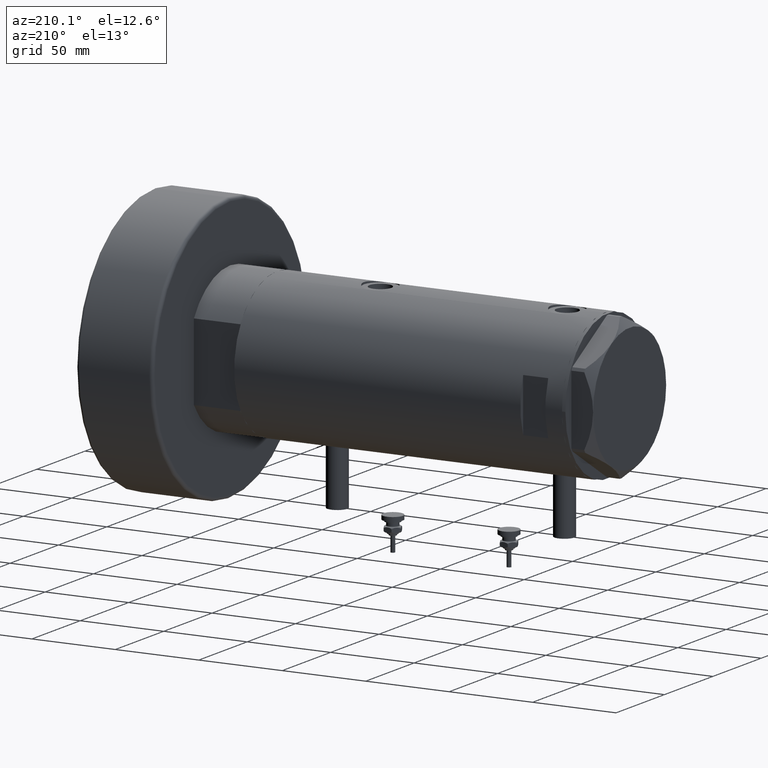
[diagram: clean part render]
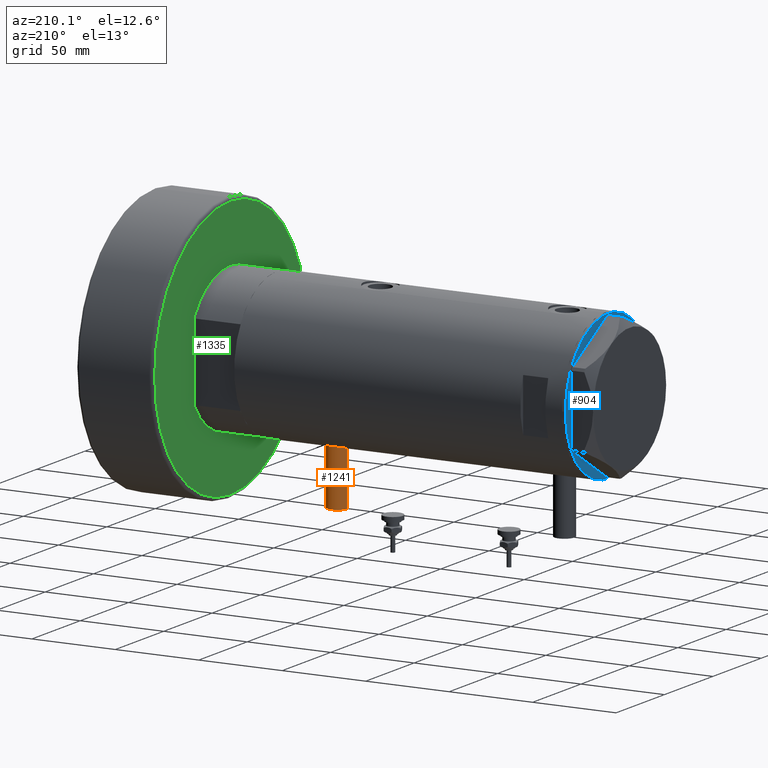
[diagram: same view with three faces highlighted in distinct colors, each labeled with its STEP entity id]
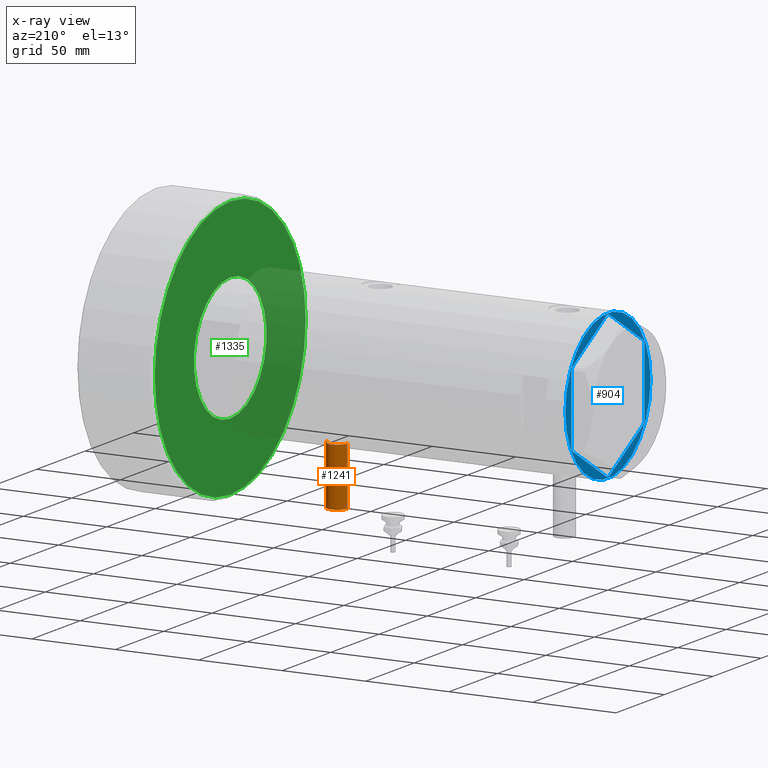
[diagram: x-ray of the same camera — body ghosted, the three highlighted faces saturated]
A machine part, auxiliary view with three faces highlighted in distinct colors.
The next image is the same camera in x-ray (body ghosted, the three faces saturated) — at least one of them is partly hidden behind the body in this view.
Their STEP definitions:

[orange] entity #1241 — the highlighted cylindrical surface (edge-blend (fillet) strip) has radius 6 mm, axis along (0, 0, 1).
#420 = DIRECTION ( 'NONE',  ( 1.000000000000000000, -0.000000000000000000, -0.000000000000000000 ) ) ;
#646 = DIRECTION ( 'NONE',  ( 0.000000000000000000, 0.000000000000000000, -1.000000000000000000 ) ) ;
#1120 = DIRECTION ( 'NONE',  ( -1.000000000000000000, 0.000000000000000000, 0.000000000000000000 ) ) ;
#1234 = VECTOR ( 'NONE', #420, 1000.000000000000000 ) ;
#1241 = ADVANCED_FACE ( 'NONE', ( #4552 ), #4039, .T. ) ;
#1384 = LINE ( 'NONE', #4266, #1234 ) ;
#1420 = EDGE_LOOP ( 'NONE', ( #4732, #5740, #2339, #3110 ) ) ;
#1750 = CARTESIAN_POINT ( 'NONE',  ( -77.50000000000000000, 7.347880794884122694E-16, -55.90000000000000568 ) ) ;
#1783 = EDGE_CURVE ( 'NONE', #3271, #3826, #2314, .T. ) ;
#1915 = CARTESIAN_POINT ( 'NONE',  ( -42.79999999999999716, 7.347880794884119736E-16, -55.90000000000000568 ) ) ;
#2014 = VECTOR ( 'NONE', #4175, 1000.000000000000000 ) ;
#2173 = EDGE_CURVE ( 'NONE', #4064, #3271, #2184, .T. ) ;
#2184 = LINE ( 'NONE', #1750, #2014 ) ;
#2314 = CIRCLE ( 'NONE', #4461, 6.000000000000005329 ) ;
#2339 = ORIENTED_EDGE ( 'NONE', *, *, #1783, .T. ) ;
#2563 = CARTESIAN_POINT ( 'NONE',  ( -77.50000000000000000, 0.000000000000000000, -61.90000000000001279 ) ) ;
#2665 = CIRCLE ( 'NONE', #3995, 6.000000000000005329 ) ;
#2890 = EDGE_CURVE ( 'NONE', #4064, #4199, #2665, .T. ) ;
#3110 = ORIENTED_EDGE ( 'NONE', *, *, #5738, .F. ) ;
#3271 = VERTEX_POINT ( 'NONE', #1915 ) ;
#3759 = CARTESIAN_POINT ( 'NONE',  ( -42.79999999999999716, 0.000000000000000000, -67.90000000000001990 ) ) ;
#3826 = VERTEX_POINT ( 'NONE', #3759 ) ;
#3951 = CARTESIAN_POINT ( 'NONE',  ( -42.79999999999999716, 0.000000000000000000, -61.90000000000001279 ) ) ;
#3995 = AXIS2_PLACEMENT_3D ( 'NONE', #2563, #1120, #4979 ) ;
#4039 = CYLINDRICAL_SURFACE ( 'NONE', #6125, 6.000000000000005329 ) ;
#4064 = VERTEX_POINT ( 'NONE', #4808 ) ;
#4175 = DIRECTION ( 'NONE',  ( 1.000000000000000000, -0.000000000000000000, -0.000000000000000000 ) ) ;
#4199 = VERTEX_POINT ( 'NONE', #5048 ) ;
#4266 = CARTESIAN_POINT ( 'NONE',  ( -77.50000000000000000, 0.000000000000000000, -67.90000000000001990 ) ) ;
#4423 = DIRECTION ( 'NONE',  ( 1.000000000000000000, -0.000000000000000000, -0.000000000000000000 ) ) ;
#4461 = AXIS2_PLACEMENT_3D ( 'NONE', #3951, #4825, #6357 ) ;
#4552 = FACE_OUTER_BOUND ( 'NONE', #1420, .T. ) ;
#4732 = ORIENTED_EDGE ( 'NONE', *, *, #2890, .F. ) ;
#4808 = CARTESIAN_POINT ( 'NONE',  ( -77.50000000000000000, 7.347880794884119736E-16, -55.90000000000000568 ) ) ;
#4825 = DIRECTION ( 'NONE',  ( -1.000000000000000000, 0.000000000000000000, 0.000000000000000000 ) ) ;
#4979 = DIRECTION ( 'NONE',  ( 0.000000000000000000, 0.000000000000000000, 1.000000000000000000 ) ) ;
#5048 = CARTESIAN_POINT ( 'NONE',  ( -77.50000000000000000, 0.000000000000000000, -67.90000000000001990 ) ) ;
#5738 = EDGE_CURVE ( 'NONE', #4199, #3826, #1384, .T. ) ;
#5740 = ORIENTED_EDGE ( 'NONE', *, *, #2173, .T. ) ;
#5989 = CARTESIAN_POINT ( 'NONE',  ( -77.50000000000000000, 0.000000000000000000, -61.90000000000001279 ) ) ;
#6125 = AXIS2_PLACEMENT_3D ( 'NONE', #5989, #4423, #646 ) ;
#6357 = DIRECTION ( 'NONE',  ( 0.000000000000000000, 0.000000000000000000, 1.000000000000000000 ) ) ;

[blue] entity #904 — the highlighted planar face has unit normal (1, 0, -0).
#17 = EDGE_LOOP ( 'NONE', ( #2877, #151 ) ) ;
#22 = ORIENTED_EDGE ( 'NONE', *, *, #145, .T. ) ;
#45 = ORIENTED_EDGE ( 'NONE', *, *, #6352, .F. ) ;
#84 = EDGE_CURVE ( 'NONE', #1723, #886, #141, .T. ) ;
#87 = VECTOR ( 'NONE', #1209, 1000.000000000000114 ) ;
#141 = LINE ( 'NONE', #2972, #364 ) ;
#145 = EDGE_CURVE ( 'NONE', #1723, #4906, #2525, .T. ) ;
#147 = AXIS2_PLACEMENT_3D ( 'NONE', #2731, #5699, #3730 ) ;
#151 = ORIENTED_EDGE ( 'NONE', *, *, #2796, .F. ) ;
#213 = CARTESIAN_POINT ( 'NONE',  ( 0.9699484522385850571, 43.02994532381674020, 0.000000000000000000 ) ) ;
#243 = DIRECTION ( 'NONE',  ( -0.8660254037844385966, 0.5000000000000000000, 0.000000000000000000 ) ) ;
#258 = CARTESIAN_POINT ( 'NONE',  ( -4.107234936485837051E-15, -43.58994532381674247, 0.000000000000000000 ) ) ;
#336 = CARTESIAN_POINT ( 'NONE',  ( -37.75000000000000711, 20.67497266190837024, 0.000000000000000000 ) ) ;
#364 = VECTOR ( 'NONE', #2492, 1000.000000000000227 ) ;
#377 = VECTOR ( 'NONE', #6109, 1000.000000000000000 ) ;
#447 = ORIENTED_EDGE ( 'NONE', *, *, #1820, .T. ) ;
#479 = ORIENTED_EDGE ( 'NONE', *, *, #1714, .T. ) ;
#516 = VERTEX_POINT ( 'NONE', #1353 ) ;
#825 = CARTESIAN_POINT ( 'NONE',  ( 0.000000000000000000, -43.02994532381674020, 0.000000000000000000 ) ) ;
#886 = VERTEX_POINT ( 'NONE', #3148 ) ;
#904 = ADVANCED_FACE ( 'NONE', ( #6187, #5732 ), #1777, .F. ) ;
#980 = LINE ( 'NONE', #5354, #1239 ) ;
#1083 = VERTEX_POINT ( 'NONE', #1455 ) ;
#1088 = VECTOR ( 'NONE', #4189, 1000.000000000000227 ) ;
#1124 = LINE ( 'NONE', #3173, #4927 ) ;
#1209 = DIRECTION ( 'NONE',  ( 0.4999999999999978351, 0.8660254037844398178, -0.000000000000000000 ) ) ;
#1239 = VECTOR ( 'NONE', #1954, 1000.000000000000000 ) ;
#1353 = CARTESIAN_POINT ( 'NONE',  ( -0.9699484522385801721, 43.02994532381674020, 0.000000000000000000 ) ) ;
#1395 = ORIENTED_EDGE ( 'NONE', *, *, #4194, .T. ) ;
#1455 = CARTESIAN_POINT ( 'NONE',  ( 36.78005154776143115, -22.35497266190837706, 0.000000000000000000 ) ) ;
#1476 = VERTEX_POINT ( 'NONE', #4805 ) ;
#1486 = ORIENTED_EDGE ( 'NONE', *, *, #3079, .F. ) ;
#1508 = VECTOR ( 'NONE', #2313, 1000.000000000000114 ) ;
#1669 = CARTESIAN_POINT ( 'NONE',  ( 0.000000000000000000, 43.02994532381674020, 0.000000000000000000 ) ) ;
#1714 = EDGE_CURVE ( 'NONE', #3413, #1083, #2715, .T. ) ;
#1723 = VERTEX_POINT ( 'NONE', #2748 ) ;
#1777 = PLANE ( 'NONE',  #147 ) ;
#1820 = EDGE_CURVE ( 'NONE', #3735, #886, #3485, .T. ) ;
#1890 = DIRECTION ( 'NONE',  ( -1.000000000000000000, 0.000000000000000000, 0.000000000000000000 ) ) ;
#1928 = CARTESIAN_POINT ( 'NONE',  ( -36.78005154776143826, 22.35497266190836996, 0.000000000000000000 ) ) ;
#1953 = DIRECTION ( 'NONE',  ( 0.000000000000000000, 0.000000000000000000, -1.000000000000000000 ) ) ;
#1954 = DIRECTION ( 'NONE',  ( 3.183713056926429451E-16, -1.000000000000000000, 0.000000000000000000 ) ) ;
#1976 = AXIS2_PLACEMENT_3D ( 'NONE', #3304, #5269, #1890 ) ;
#2074 = DIRECTION ( 'NONE',  ( -0.8660254037844387076, -0.4999999999999998890, 0.000000000000000000 ) ) ;
#2089 = EDGE_CURVE ( 'NONE', #3735, #1083, #5637, .T. ) ;
#2169 = LINE ( 'NONE', #4642, #377 ) ;
#2313 = DIRECTION ( 'NONE',  ( 0.8660254037844388186, 0.4999999999999997224, 0.000000000000000000 ) ) ;
#2330 = LINE ( 'NONE', #4255, #5743 ) ;
#2391 = CARTESIAN_POINT ( 'NONE',  ( 0.000000000000000000, 0.000000000000000000, 0.000000000000000000 ) ) ;
#2492 = DIRECTION ( 'NONE',  ( 0.8660254037844385966, -0.4999999999999998890, 0.000000000000000000 ) ) ;
#2522 = LINE ( 'NONE', #4093, #5534 ) ;
#2525 = LINE ( 'NONE', #4544, #3558 ) ;
#2529 = DIRECTION ( 'NONE',  ( 1.000000000000000000, -0.000000000000000000, -0.000000000000000000 ) ) ;
#2603 = VERTEX_POINT ( 'NONE', #5630 ) ;
#2659 = CARTESIAN_POINT ( 'NONE',  ( 37.75000000000000000, 20.67497266190835958, 0.000000000000000000 ) ) ;
#2715 = LINE ( 'NONE', #4223, #1088 ) ;
#2731 = CARTESIAN_POINT ( 'NONE',  ( 0.000000000000000000, 0.000000000000000000, 0.000000000000000000 ) ) ;
#2748 = CARTESIAN_POINT ( 'NONE',  ( -36.78005154776141694, -22.35497266190838772, 0.000000000000000000 ) ) ;
#2796 = EDGE_CURVE ( 'NONE', #1476, #2603, #5774, .T. ) ;
#2809 = ORIENTED_EDGE ( 'NONE', *, *, #4944, .F. ) ;
#2877 = ORIENTED_EDGE ( 'NONE', *, *, #5079, .F. ) ;
#2972 = CARTESIAN_POINT ( 'NONE',  ( -37.74999999999999289, -21.79497266190838189, 0.000000000000000000 ) ) ;
#3008 = VERTEX_POINT ( 'NONE', #213 ) ;
#3079 = EDGE_CURVE ( 'NONE', #3413, #4791, #2169, .T. ) ;
#3148 = CARTESIAN_POINT ( 'NONE',  ( -0.9699484522385920515, -43.02994532381674020, 0.000000000000000000 ) ) ;
#3173 = CARTESIAN_POINT ( 'NONE',  ( 37.26502577388072979, 21.51497266190834523, 0.000000000000000000 ) ) ;
#3195 = CARTESIAN_POINT ( 'NONE',  ( -37.26502577388077242, 21.51497266190828483, 0.000000000000000000 ) ) ;
#3304 = CARTESIAN_POINT ( 'NONE',  ( 0.000000000000000000, 0.000000000000000000, 0.000000000000000000 ) ) ;
#3413 = VERTEX_POINT ( 'NONE', #5039 ) ;
#3485 = LINE ( 'NONE', #825, #4570 ) ;
#3504 = CARTESIAN_POINT ( 'NONE',  ( 36.78005154776142405, 22.35497266190837706, 0.000000000000000000 ) ) ;
#3534 = DIRECTION ( 'NONE',  ( 0.4999999999999993894, -0.8660254037844390407, -0.000000000000000000 ) ) ;
#3558 = VECTOR ( 'NONE', #4475, 999.9999999999998863 ) ;
#3730 = DIRECTION ( 'NONE',  ( -1.000000000000000000, 0.000000000000000000, -0.000000000000000000 ) ) ;
#3735 = VERTEX_POINT ( 'NONE', #4964 ) ;
#3908 = ORIENTED_EDGE ( 'NONE', *, *, #84, .F. ) ;
#3956 = ORIENTED_EDGE ( 'NONE', *, *, #5437, .T. ) ;
#4093 = CARTESIAN_POINT ( 'NONE',  ( 0.000000000000000000, 43.58994532381674247, 0.000000000000000000 ) ) ;
#4189 = DIRECTION ( 'NONE',  ( -0.4999999999999981681, -0.8660254037844395958, -0.000000000000000000 ) ) ;
#4194 = EDGE_CURVE ( 'NONE', #516, #3008, #4946, .T. ) ;
#4223 = CARTESIAN_POINT ( 'NONE',  ( 37.26502577388077242, -21.51497266190830260, 0.000000000000000000 ) ) ;
#4228 = VERTEX_POINT ( 'NONE', #3504 ) ;
#4255 = CARTESIAN_POINT ( 'NONE',  ( 37.75000000000000000, 21.79497266190837124, 0.000000000000000000 ) ) ;
#4283 = VECTOR ( 'NONE', #2529, 1000.000000000000000 ) ;
#4475 = DIRECTION ( 'NONE',  ( -0.5000000000000002220, 0.8660254037844385966, -0.000000000000000000 ) ) ;
#4508 = EDGE_LOOP ( 'NONE', ( #2809, #6097, #1486, #479, #4824, #447, #3908, #22, #45, #3956, #4803, #1395 ) ) ;
#4544 = CARTESIAN_POINT ( 'NONE',  ( -37.26502577388070847, -21.51497266190838076, 0.000000000000000000 ) ) ;
#4570 = VECTOR ( 'NONE', #5442, 1000.000000000000000 ) ;
#4642 = CARTESIAN_POINT ( 'NONE',  ( 37.75000000000002132, -21.79497266190837124, 0.000000000000000000 ) ) ;
#4791 = VERTEX_POINT ( 'NONE', #2659 ) ;
#4803 = ORIENTED_EDGE ( 'NONE', *, *, #5296, .F. ) ;
#4805 = CARTESIAN_POINT ( 'NONE',  ( -44.00000000000000000, 5.388445916248353619E-15, 0.000000000000000000 ) ) ;
#4824 = ORIENTED_EDGE ( 'NONE', *, *, #2089, .F. ) ;
#4905 = DIRECTION ( 'NONE',  ( -1.000000000000000000, 0.000000000000000000, 0.000000000000000000 ) ) ;
#4906 = VERTEX_POINT ( 'NONE', #6207 ) ;
#4927 = VECTOR ( 'NONE', #3534, 999.9999999999998863 ) ;
#4944 = EDGE_CURVE ( 'NONE', #4228, #3008, #2330, .T. ) ;
#4946 = LINE ( 'NONE', #1669, #4283 ) ;
#4964 = CARTESIAN_POINT ( 'NONE',  ( 0.9699484522385760643, -43.02994532381674020, 0.000000000000000000 ) ) ;
#5039 = CARTESIAN_POINT ( 'NONE',  ( 37.75000000000002132, -20.67497266190835958, 0.000000000000000000 ) ) ;
#5079 = EDGE_CURVE ( 'NONE', #2603, #1476, #5952, .T. ) ;
#5127 = AXIS2_PLACEMENT_3D ( 'NONE', #2391, #1953, #4905 ) ;
#5269 = DIRECTION ( 'NONE',  ( 0.000000000000000000, 0.000000000000000000, -1.000000000000000000 ) ) ;
#5296 = EDGE_CURVE ( 'NONE', #516, #5942, #2522, .T. ) ;
#5346 = VERTEX_POINT ( 'NONE', #336 ) ;
#5354 = CARTESIAN_POINT ( 'NONE',  ( -37.75000000000000711, 21.79497266190837124, 0.000000000000000000 ) ) ;
#5437 = EDGE_CURVE ( 'NONE', #5346, #5942, #5614, .T. ) ;
#5442 = DIRECTION ( 'NONE',  ( -1.000000000000000000, -0.000000000000000000, -0.000000000000000000 ) ) ;
#5534 = VECTOR ( 'NONE', #2074, 1000.000000000000000 ) ;
#5614 = LINE ( 'NONE', #3195, #87 ) ;
#5630 = CARTESIAN_POINT ( 'NONE',  ( 44.00000000000000000, 0.000000000000000000, 0.000000000000000000 ) ) ;
#5637 = LINE ( 'NONE', #258, #1508 ) ;
#5699 = DIRECTION ( 'NONE',  ( 0.000000000000000000, 0.000000000000000000, -1.000000000000000000 ) ) ;
#5732 = FACE_OUTER_BOUND ( 'NONE', #17, .T. ) ;
#5743 = VECTOR ( 'NONE', #243, 1000.000000000000227 ) ;
#5774 = CIRCLE ( 'NONE', #1976, 44.00000000000000000 ) ;
#5942 = VERTEX_POINT ( 'NONE', #1928 ) ;
#5952 = CIRCLE ( 'NONE', #5127, 44.00000000000000000 ) ;
#6097 = ORIENTED_EDGE ( 'NONE', *, *, #6117, .T. ) ;
#6109 = DIRECTION ( 'NONE',  ( -4.775569585389645902E-16, 1.000000000000000000, 0.000000000000000000 ) ) ;
#6117 = EDGE_CURVE ( 'NONE', #4228, #4791, #1124, .T. ) ;
#6187 = FACE_BOUND ( 'NONE', #4508, .T. ) ;
#6207 = CARTESIAN_POINT ( 'NONE',  ( -37.74999999999999289, -20.67497266190837379, 0.000000000000000000 ) ) ;
#6352 = EDGE_CURVE ( 'NONE', #5346, #4906, #980, .T. ) ;

[green] entity #1335 — the highlighted planar face has unit normal (1, 0, -0).
#185 = FACE_OUTER_BOUND ( 'NONE', #618, .T. ) ;
#199 = ORIENTED_EDGE ( 'NONE', *, *, #4213, .T. ) ;
#618 = EDGE_LOOP ( 'NONE', ( #5833, #199 ) ) ;
#696 = DIRECTION ( 'NONE',  ( 1.000000000000000000, 0.000000000000000000, 0.000000000000000000 ) ) ;
#804 = PLANE ( 'NONE',  #6329 ) ;
#1257 = CARTESIAN_POINT ( 'NONE',  ( 0.000000000000000000, 0.000000000000000000, 0.000000000000000000 ) ) ;
#1285 = DIRECTION ( 'NONE',  ( 1.000000000000000000, 0.000000000000000000, -0.000000000000000000 ) ) ;
#1335 = ADVANCED_FACE ( 'NONE', ( #185, #2631 ), #804, .F. ) ;
#1358 = CARTESIAN_POINT ( 'NONE',  ( 37.50000000000000711, 0.000000000000000000, 0.000000000000000000 ) ) ;
#1545 = DIRECTION ( 'NONE',  ( 1.000000000000000000, 0.000000000000000000, 0.000000000000000000 ) ) ;
#1731 = CIRCLE ( 'NONE', #5523, 37.50000000000000711 ) ;
#1801 = CARTESIAN_POINT ( 'NONE',  ( 0.000000000000000000, 0.000000000000000000, 0.000000000000000000 ) ) ;
#1839 = CARTESIAN_POINT ( 'NONE',  ( -78.00000000000000000, 9.674709713264090904E-15, 0.000000000000000000 ) ) ;
#2136 = VERTEX_POINT ( 'NONE', #1839 ) ;
#2202 = DIRECTION ( 'NONE',  ( 1.000000000000000000, 0.000000000000000000, 0.000000000000000000 ) ) ;
#2237 = DIRECTION ( 'NONE',  ( -0.000000000000000000, -0.000000000000000000, -1.000000000000000000 ) ) ;
#2298 = CARTESIAN_POINT ( 'NONE',  ( 0.000000000000000000, 0.000000000000000000, 0.000000000000000000 ) ) ;
#2631 = FACE_BOUND ( 'NONE', #5006, .T. ) ;
#2699 = DIRECTION ( 'NONE',  ( 1.000000000000000000, 0.000000000000000000, 0.000000000000000000 ) ) ;
#2855 = CIRCLE ( 'NONE', #4393, 78.00000000000000000 ) ;
#2956 = AXIS2_PLACEMENT_3D ( 'NONE', #3071, #5938, #696 ) ;
#3071 = CARTESIAN_POINT ( 'NONE',  ( 0.000000000000000000, 0.000000000000000000, 0.000000000000000000 ) ) ;
#3321 = CARTESIAN_POINT ( 'NONE',  ( -37.50000000000000711, 4.592425496802575156E-15, 0.000000000000000000 ) ) ;
#3351 = VERTEX_POINT ( 'NONE', #5512 ) ;
#3365 = CIRCLE ( 'NONE', #4078, 78.00000000000000000 ) ;
#3368 = ORIENTED_EDGE ( 'NONE', *, *, #5319, .T. ) ;
#3953 = EDGE_CURVE ( 'NONE', #5501, #5770, #1731, .T. ) ;
#4078 = AXIS2_PLACEMENT_3D ( 'NONE', #5587, #5489, #1545 ) ;
#4213 = EDGE_CURVE ( 'NONE', #2136, #3351, #3365, .T. ) ;
#4231 = DIRECTION ( 'NONE',  ( 0.000000000000000000, 0.000000000000000000, 1.000000000000000000 ) ) ;
#4393 = AXIS2_PLACEMENT_3D ( 'NONE', #2298, #2237, #2202 ) ;
#4746 = DIRECTION ( 'NONE',  ( 0.000000000000000000, 0.000000000000000000, 1.000000000000000000 ) ) ;
#4919 = CIRCLE ( 'NONE', #2956, 37.50000000000000711 ) ;
#4930 = EDGE_CURVE ( 'NONE', #3351, #2136, #2855, .T. ) ;
#4990 = ORIENTED_EDGE ( 'NONE', *, *, #3953, .T. ) ;
#5006 = EDGE_LOOP ( 'NONE', ( #3368, #4990 ) ) ;
#5319 = EDGE_CURVE ( 'NONE', #5770, #5501, #4919, .T. ) ;
#5489 = DIRECTION ( 'NONE',  ( -0.000000000000000000, -0.000000000000000000, -1.000000000000000000 ) ) ;
#5501 = VERTEX_POINT ( 'NONE', #3321 ) ;
#5512 = CARTESIAN_POINT ( 'NONE',  ( 78.00000000000000000, 0.000000000000000000, 0.000000000000000000 ) ) ;
#5523 = AXIS2_PLACEMENT_3D ( 'NONE', #1801, #4746, #2699 ) ;
#5587 = CARTESIAN_POINT ( 'NONE',  ( 0.000000000000000000, 0.000000000000000000, 0.000000000000000000 ) ) ;
#5770 = VERTEX_POINT ( 'NONE', #1358 ) ;
#5833 = ORIENTED_EDGE ( 'NONE', *, *, #4930, .T. ) ;
#5938 = DIRECTION ( 'NONE',  ( 0.000000000000000000, 0.000000000000000000, 1.000000000000000000 ) ) ;
#6329 = AXIS2_PLACEMENT_3D ( 'NONE', #1257, #4231, #1285 ) ;